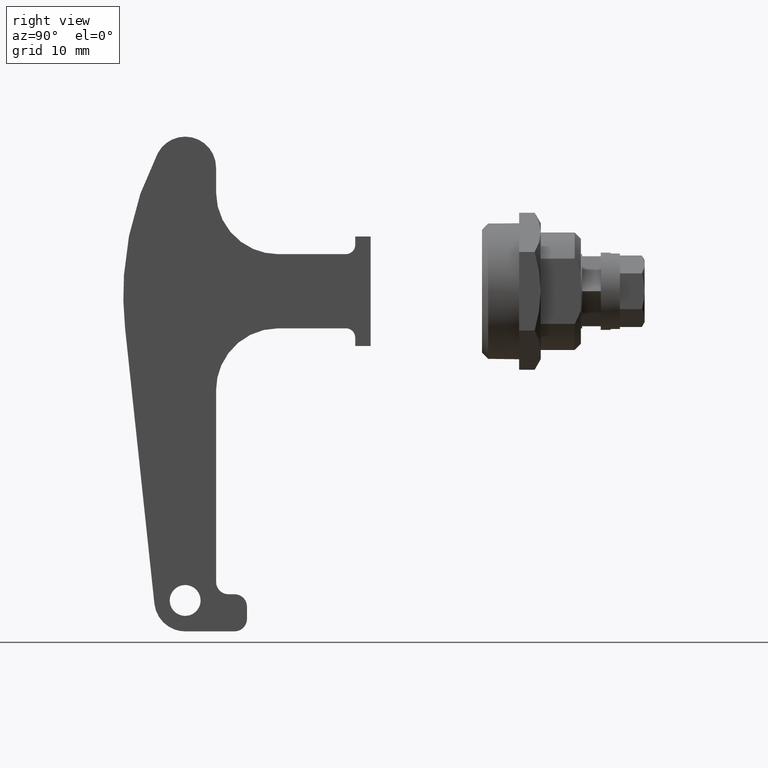
[diagram: clean part render]
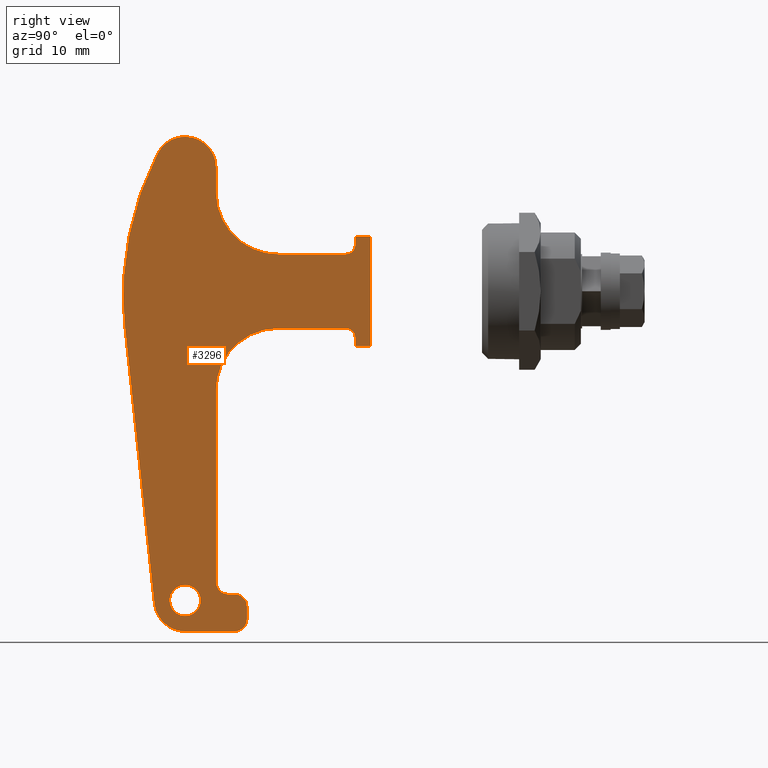
[diagram: same view with one face highlighted and labeled with its STEP entity id]
A machine part, right view. The second image highlights one B-rep face of the part: STEP entity #3296.
In plain terms, the highlighted face is a freeform B-spline surface patch.
Its self-contained STEP definition (entity closure, byte-faithful):
#2688=CARTESIAN_POINT('',(1.0,-172.408525002422010,-51.656350410493559));
#2689=VERTEX_POINT('',#2688);
#2695=CARTESIAN_POINT('',(1.0,-170.536136000000000,-52.499800000000000));
#2696=VERTEX_POINT('',#2695);
#2697=CARTESIAN_POINT('',(1.0,-172.408525002422010,-51.656350410493559));
#2698=CARTESIAN_POINT('',(1.000000000000000,-172.218765269600710,-51.871134569583113));
#2699=CARTESIAN_POINT('',(1.000000000000001,-171.851680893695200,-52.164244314597063));
#2700=CARTESIAN_POINT('',(1.0,-171.197403162582190,-52.438358340693263));
#2701=CARTESIAN_POINT('',(0.999999999999999,-170.778634413464800,-52.499902946295222));
#2702=CARTESIAN_POINT('',(1.0,-170.536136000000000,-52.499800000000000));
#2703=B_SPLINE_CURVE_WITH_KNOTS('',3,(#2697,#2698,#2699,#2700,#2701,#2702),.UNSPECIFIED.,.F.,.U.,(4,1,1,4),(0.000000159299194,0.859743418528021,1.388786231254722,2.116272971872887),.UNSPECIFIED.);
#2704=EDGE_CURVE('',#2689,#2696,#2703,.T.);
#2706=CARTESIAN_POINT('',(1.0,-168.036136000000000,-49.999800129850001));
#2707=VERTEX_POINT('',#2706);
#2708=CARTESIAN_POINT('',(1.0,-170.536136000000000,-52.499800000000000));
#2709=CARTESIAN_POINT('',(1.000000000000002,-170.188356166709410,-52.500260487814721));
#2710=CARTESIAN_POINT('',(0.999999999999997,-169.595604012052010,-52.373945107237837));
#2711=CARTESIAN_POINT('',(0.999999999999998,-168.844410458549190,-51.898314483583050));
#2712=CARTESIAN_POINT('',(1.000000000000009,-168.396737789170000,-51.352813859373377));
#2713=CARTESIAN_POINT('',(0.999999999999991,-168.105347834750400,-50.695110744591879));
#2714=CARTESIAN_POINT('',(1.000000000000005,-168.035994032083690,-50.265705896427242));
#2715=CARTESIAN_POINT('',(1.0,-168.036136000000000,-49.999800129850001));
#2716=B_SPLINE_CURVE_WITH_KNOTS('',3,(#2708,#2709,#2710,#2711,#2712,#2713,#2714,#2715),.UNSPECIFIED.,.F.,.U.,(4,1,1,1,1,4),(0.000000543888734,1.043138602829692,1.779488417533532,2.638502232633047,3.129407698402412,3.927089287728215),.UNSPECIFIED.);
#2717=EDGE_CURVE('',#2696,#2707,#2716,.T.);
#2719=CARTESIAN_POINT('',(1.0,-170.536136000000000,-47.499799999999993));
#2720=VERTEX_POINT('',#2719);
#2721=CARTESIAN_POINT('',(1.0,-168.036136000000000,-49.999800129850001));
#2722=CARTESIAN_POINT('',(1.0,-168.035992696794890,-49.733893875186787));
#2723=CARTESIAN_POINT('',(1.000000000000001,-168.105333804147590,-49.304477470429049));
#2724=CARTESIAN_POINT('',(0.999999999999999,-168.380156711428900,-48.684452767351281));
#2725=CARTESIAN_POINT('',(1.000000000000001,-168.787135531025090,-48.162824488278808));
#2726=CARTESIAN_POINT('',(0.999999999999997,-169.514010359687800,-47.650750198929913));
#2727=CARTESIAN_POINT('',(1.000000000000004,-170.147384490604590,-47.499121212078357));
#2728=CARTESIAN_POINT('',(1.0,-170.536136000000000,-47.499799999999993));
#2729=B_SPLINE_CURVE_WITH_KNOTS('',3,(#2721,#2722,#2723,#2724,#2725,#2726,#2727,#2728),.UNSPECIFIED.,.F.,.U.,(4,1,1,1,1,4),(0.000000543719573,0.797682162745053,1.288587646904784,2.024825535698195,2.761226608019133,3.927089434103053),.UNSPECIFIED.);
#2730=EDGE_CURVE('',#2707,#2720,#2729,.T.);
#2732=CARTESIAN_POINT('',(1.0,-172.192686452774300,-48.127410948943577));
#2733=VERTEX_POINT('',#2732);
#2734=CARTESIAN_POINT('',(1.0,-170.536136000000000,-47.499799999999993));
#2735=CARTESIAN_POINT('',(1.000000000000002,-170.819100439673800,-47.499616721850927));
#2736=CARTESIAN_POINT('',(0.999999999999998,-171.422569465762900,-47.603383305387887));
#2737=CARTESIAN_POINT('',(1.000000000000001,-171.952698267033610,-47.914696512699607));
#2738=CARTESIAN_POINT('',(1.0,-172.192686452774300,-48.127410948943577));
#2739=B_SPLINE_CURVE_WITH_KNOTS('',3,(#2734,#2735,#2736,#2737,#2738),.UNSPECIFIED.,.F.,.U.,(4,1,4),(0.000000093415586,0.848851872186542,1.810818172899197),.UNSPECIFIED.);
#2740=EDGE_CURVE('',#2720,#2733,#2739,.T.);
#2776=CARTESIAN_POINT('',(1.0,-173.036136000000000,-49.999799870149992));
#2777=VERTEX_POINT('',#2776);
#2778=CARTESIAN_POINT('',(1.0,-172.192686452774300,-48.127410948943577));
#2779=CARTESIAN_POINT('',(1.0,-172.407484753023910,-48.317156830366308));
#2780=CARTESIAN_POINT('',(1.000000000000000,-172.700569675996490,-48.684265248449712));
#2781=CARTESIAN_POINT('',(1.000000000000000,-172.974692939324310,-49.338533031354622));
#2782=CARTESIAN_POINT('',(1.000000000000001,-173.036241067928190,-49.757300905441419));
#2783=CARTESIAN_POINT('',(1.0,-173.036136000000000,-49.999799870149992));
#2784=B_SPLINE_CURVE_WITH_KNOTS('',3,(#2778,#2779,#2780,#2781,#2782,#2783),.UNSPECIFIED.,.F.,.U.,(4,1,1,4),(0.000000159299846,0.859743377085096,1.388786164312306,2.116272869846344),.UNSPECIFIED.);
#2785=EDGE_CURVE('',#2733,#2777,#2784,.T.);
#2787=CARTESIAN_POINT('',(1.0,-173.036136000000000,-49.999799870149992));
#2788=CARTESIAN_POINT('',(1.0,-173.036245283288790,-50.263884140409317));
#2789=CARTESIAN_POINT('',(1.0,-172.939644410808310,-50.867419234284249));
#2790=CARTESIAN_POINT('',(1.000000000000000,-172.633833628480090,-51.402281326452588));
#2791=CARTESIAN_POINT('',(1.0,-172.408525002422010,-51.656350410493559));
#2792=B_SPLINE_CURVE_WITH_KNOTS('',3,(#2787,#2788,#2789,#2790,#2791),.UNSPECIFIED.,.F.,.U.,(4,1,4),(0.000000093411884,0.792253248510607,1.810818279979138),.UNSPECIFIED.);
#2793=EDGE_CURVE('',#2777,#2689,#2792,.T.);
#3052=CARTESIAN_POINT('',(1.0,-182.531969976906310,28.994175920847951));
#3053=CARTESIAN_POINT('',(1.0,-138.538235049813610,28.994175920847951));
#3054=CARTESIAN_POINT('',(1.0,-182.531969976906310,-58.995705705116187));
#3055=CARTESIAN_POINT('',(1.0,-138.538235049813610,-58.995705705116187));
#3056=B_SPLINE_SURFACE_WITH_KNOTS('',1,1,((#3052,#3054),(#3053,#3055)),.UNSPECIFIED.,.F.,.F.,.U.,(2,2),(2,2),(0.0,43.993734927092653),(0.0,87.989881625964145),.UNSPECIFIED.);
#3057=CARTESIAN_POINT('',(1.0,-143.036136000000000,7.500000000000000));
#3058=VERTEX_POINT('',#3057);
#3059=CARTESIAN_POINT('',(1.0,-143.036136000000000,8.850000000000000));
#3060=VERTEX_POINT('',#3059);
#3061=CARTESIAN_POINT('',(1.0,-143.036136000000000,7.500000000000000));
#3062=CARTESIAN_POINT('',(1.0,-143.036136000000000,8.850000000000000));
#3063=QUASI_UNIFORM_CURVE('',1,(#3061,#3062),.UNSPECIFIED.,.F.,.U.);
#3064=EDGE_CURVE('',#3058,#3060,#3063,.T.);
#3065=ORIENTED_EDGE('',*,*,#3064,.F.);
#3066=CARTESIAN_POINT('',(1.0,-144.536136000000000,6.0));
#3067=VERTEX_POINT('',#3066);
#3068=CARTESIAN_POINT('',(1.0,-144.536136000000000,6.0));
#3069=CARTESIAN_POINT('',(1.000000000000000,-144.364328450384110,5.999902386504352));
#3070=CARTESIAN_POINT('',(1.0,-143.996199413855290,6.063884458602612));
#3071=CARTESIAN_POINT('',(1.000000000000002,-143.502501754630090,6.359509338114351));
#3072=CARTESIAN_POINT('',(0.999999999999996,-143.129994263701600,6.862151444936044));
#3073=CARTESIAN_POINT('',(1.000000000000003,-143.035823639093000,7.279038803580241));
#3074=CARTESIAN_POINT('',(1.0,-143.036136000000000,7.500000000000000));
#3075=B_SPLINE_CURVE_WITH_KNOTS('',3,(#3068,#3069,#3070,#3071,#3072,#3073,#3074),.UNSPECIFIED.,.F.,.U.,(4,1,1,1,4),(0.000000348524005,0.515468944969951,1.104583506280744,1.693684183177093,2.356430824938667),.UNSPECIFIED.);
#3076=EDGE_CURVE('',#3067,#3058,#3075,.T.);
#3077=ORIENTED_EDGE('',*,*,#3076,.F.);
#3078=CARTESIAN_POINT('',(1.0,-155.536136000000000,6.0));
#3079=VERTEX_POINT('',#3078);
#3080=CARTESIAN_POINT('',(1.0,-155.536136000000000,6.0));
#3081=CARTESIAN_POINT('',(1.0,-144.536136000000000,6.0));
#3082=QUASI_UNIFORM_CURVE('',1,(#3080,#3081),.UNSPECIFIED.,.F.,.U.);
#3083=EDGE_CURVE('',#3079,#3067,#3082,.T.);
#3084=ORIENTED_EDGE('',*,*,#3083,.F.);
#3085=CARTESIAN_POINT('',(1.0,-165.536136000000000,16.0));
#3086=VERTEX_POINT('',#3085);
#3087=CARTESIAN_POINT('',(1.0,-165.536136000000000,16.0));
#3088=CARTESIAN_POINT('',(0.999999999999998,-165.536270206773710,15.222783024775010));
#3089=CARTESIAN_POINT('',(1.000000000000002,-165.344535277846090,13.586556363174550));
#3090=CARTESIAN_POINT('',(1.0,-164.482754602917000,11.310709298614350));
#3091=CARTESIAN_POINT('',(1.000000000000001,-163.119200065381790,9.349326876895788));
#3092=CARTESIAN_POINT('',(1.000000000000000,-161.685892623961910,8.050416106532385));
#3093=CARTESIAN_POINT('',(1.000000000000006,-160.196986578333110,7.107668725069982));
#3094=CARTESIAN_POINT('',(0.999999999999994,-158.276544224122200,6.270142162420049));
#3095=CARTESIAN_POINT('',(1.0,-156.599769320177500,5.999434560674318));
#3096=CARTESIAN_POINT('',(1.0,-155.536136000000000,6.0));
#3097=B_SPLINE_CURVE_WITH_KNOTS('',3,(#3087,#3088,#3089,#3090,#3091,#3092,#3093,#3094,#3095,#3096),.UNSPECIFIED.,.F.,.U.,(4,1,1,1,1,1,1,4),(0.000000270709116,2.331654123721627,4.908776769898752,7.240483282938246,9.449341766031962,10.676546318009720,12.517376724644430,15.708061828768770),.UNSPECIFIED.);
#3098=EDGE_CURVE('',#3086,#3079,#3097,.T.);
#3099=ORIENTED_EDGE('',*,*,#3098,.F.);
#3100=CARTESIAN_POINT('',(1.0,-165.536136000000000,20.0));
#3101=VERTEX_POINT('',#3100);
#3102=CARTESIAN_POINT('',(1.0,-165.536136000000000,20.0));
#3103=CARTESIAN_POINT('',(1.0,-165.536136000000000,16.0));
#3104=QUASI_UNIFORM_CURVE('',1,(#3102,#3103),.UNSPECIFIED.,.F.,.U.);
#3105=EDGE_CURVE('',#3101,#3086,#3104,.T.);
#3106=ORIENTED_EDGE('',*,*,#3105,.F.);
#3107=CARTESIAN_POINT('',(1.0,-174.980589359556490,22.290851301147448));
#3108=VERTEX_POINT('',#3107);
#3109=CARTESIAN_POINT('',(1.0,-165.536136000000000,20.0));
#3110=CARTESIAN_POINT('',(1.000000000000000,-165.535651330309610,20.590148397457270));
#3111=CARTESIAN_POINT('',(1.0,-165.703977443484490,21.526960888046489));
#3112=CARTESIAN_POINT('',(1.000000000000001,-166.275205194960510,22.685051597023840));
#3113=CARTESIAN_POINT('',(1.000000000000002,-167.030100612542410,23.645451138516009));
#3114=CARTESIAN_POINT('',(0.999999999999996,-168.041604944862400,24.404866339557891));
#3115=CARTESIAN_POINT('',(1.000000000000006,-169.310428777709210,24.901753025372528));
#3116=CARTESIAN_POINT('',(0.999999999999999,-170.422759360053900,25.039765414371960));
#3117=CARTESIAN_POINT('',(1.0,-171.601688043104500,24.927084001691231));
#3118=CARTESIAN_POINT('',(1.0,-172.567895689886910,24.613446190662991));
#3119=CARTESIAN_POINT('',(1.0,-173.498115673314800,24.065013004533551));
#3120=CARTESIAN_POINT('',(1.000000000000000,-174.311452175277990,23.351637564042569));
#3121=CARTESIAN_POINT('',(1.0,-174.774012401304300,22.692009829662119));
#3122=CARTESIAN_POINT('',(1.0,-174.980589359556490,22.290851301147448));
#3123=B_SPLINE_CURVE_WITH_KNOTS('',3,(#3109,#3110,#3111,#3112,#3113,#3114,#3115,#3116,#3117,#3118,#3119,#3120,#3121,#3122),.UNSPECIFIED.,.F.,.U.,(4,1,1,1,1,1,1,1,1,1,1,4),(0.000000654076901,1.770239848158150,2.811577260832493,3.852943371635385,5.415021830009432,6.560474267477026,7.914034090324725,8.747138884296152,10.100936611302920,10.934040756647960,11.975407582284880,13.329057838478249),.UNSPECIFIED.);
#3124=EDGE_CURVE('',#3101,#3108,#3123,.T.);
#3125=ORIENTED_EDGE('',*,*,#3124,.T.);
#3126=CARTESIAN_POINT('',(1.0,-180.255535899108510,-5.905000948322530));
#3127=VERTEX_POINT('',#3126);
#3128=CARTESIAN_POINT('',(1.0,-174.980589359556490,22.290851301147448));
#3129=CARTESIAN_POINT('',(1.0,-176.369247159211000,19.597096437408570));
#3130=CARTESIAN_POINT('',(1.000000000000003,-178.140090907402510,15.225299982227590));
#3131=CARTESIAN_POINT('',(0.999999999999996,-179.642960447466410,9.189073221727275));
#3132=CARTESIAN_POINT('',(1.000000000000001,-180.631174540060700,2.588412057820146));
#3133=CARTESIAN_POINT('',(0.999999999999998,-180.624822931351700,-2.439372199072217));
#3134=CARTESIAN_POINT('',(1.0,-180.255535899108510,-5.905000948322530));
#3135=B_SPLINE_CURVE_WITH_KNOTS('',3,(#3128,#3129,#3130,#3131,#3132,#3133,#3134),.UNSPECIFIED.,.F.,.U.,(4,1,1,1,4),(0.000000015266519,9.091807153595042,14.092292656003700,18.638175211276160,29.093756540547840),.UNSPECIFIED.);
#3136=EDGE_CURVE('',#3108,#3127,#3135,.T.);
#3137=ORIENTED_EDGE('',*,*,#3136,.T.);
#3138=CARTESIAN_POINT('',(1.0,-175.508040051504510,-50.528761918160299));
#3139=VERTEX_POINT('',#3138);
#3140=CARTESIAN_POINT('',(1.0,-175.508040051504510,-50.528761918160299));
#3141=CARTESIAN_POINT('',(1.0,-180.255535899108510,-5.905000948322530));
#3142=QUASI_UNIFORM_CURVE('',1,(#3140,#3141),.UNSPECIFIED.,.F.,.U.);
#3143=EDGE_CURVE('',#3139,#3127,#3142,.T.);
#3144=ORIENTED_EDGE('',*,*,#3143,.F.);
#3145=CARTESIAN_POINT('',(1.0,-170.536098852220500,-54.999800000000000));
#3146=VERTEX_POINT('',#3145);
#3147=CARTESIAN_POINT('',(1.0,-175.508040051504510,-50.528761918160299));
#3148=CARTESIAN_POINT('',(1.000000000000002,-175.467767249162310,-50.908084614285997));
#3149=CARTESIAN_POINT('',(0.999999999999997,-175.291357056239800,-51.694889112015240));
#3150=CARTESIAN_POINT('',(1.000000000000002,-174.727369014573900,-52.831456638390932));
#3151=CARTESIAN_POINT('',(1.000000000000000,-173.936665273361510,-53.725757987185681));
#3152=CARTESIAN_POINT('',(0.999999999999999,-173.062365303995310,-54.347054025173563));
#3153=CARTESIAN_POINT('',(1.0,-171.985415643489010,-54.847463412505213));
#3154=CARTESIAN_POINT('',(1.000000000000003,-171.108359805882910,-55.000235142685163));
#3155=CARTESIAN_POINT('',(1.0,-170.536098852220500,-54.999800000000000));
#3156=B_SPLINE_CURVE_WITH_KNOTS('',3,(#3147,#3148,#3149,#3150,#3151,#3152,#3153,#3154,#3155),.UNSPECIFIED.,.F.,.U.,(4,1,1,1,1,1,4),(0.000000250459265,1.144376551728799,2.403274791967948,3.776496911442255,4.692022891164207,5.607586888820030,7.324187848232405),.UNSPECIFIED.);
#3157=EDGE_CURVE('',#3139,#3146,#3156,.T.);
#3158=ORIENTED_EDGE('',*,*,#3157,.T.);
#3159=CARTESIAN_POINT('',(1.0,-162.536136000000000,-54.999800000000000));
#3160=VERTEX_POINT('',#3159);
#3161=CARTESIAN_POINT('',(1.0,-162.536136000000000,-54.999800000000000));
#3162=CARTESIAN_POINT('',(1.0,-170.536098852220500,-54.999800000000000));
#3163=QUASI_UNIFORM_CURVE('',1,(#3161,#3162),.UNSPECIFIED.,.F.,.U.);
#3164=EDGE_CURVE('',#3160,#3146,#3163,.T.);
#3165=ORIENTED_EDGE('',*,*,#3164,.F.);
#3166=CARTESIAN_POINT('',(1.0,-160.536136000000000,-52.999800000000000));
#3167=VERTEX_POINT('',#3166);
#3168=CARTESIAN_POINT('',(1.0,-162.536136000000000,-54.999800000000000));
#3169=CARTESIAN_POINT('',(1.000000000000001,-162.323415775439910,-54.999917801515963));
#3170=CARTESIAN_POINT('',(0.999999999999999,-161.914416937771700,-54.933930859061093));
#3171=CARTESIAN_POINT('',(1.000000000000001,-161.426893922982200,-54.688536838248659));
#3172=CARTESIAN_POINT('',(0.999999999999999,-161.053482805580190,-54.366306310719530));
#3173=CARTESIAN_POINT('',(1.000000000000001,-160.670034435391100,-53.850025567971407));
#3174=CARTESIAN_POINT('',(0.999999999999999,-160.535402394528010,-53.343597956939888));
#3175=CARTESIAN_POINT('',(1.0,-160.536136000000000,-52.999800000000000));
#3176=B_SPLINE_CURVE_WITH_KNOTS('',3,(#3168,#3169,#3170,#3171,#3172,#3173,#3174,#3175),.UNSPECIFIED.,.F.,.U.,(4,1,1,1,1,4),(0.000000559976899,0.638137288425729,1.227220290634346,1.619840993311987,2.110791174281912,3.141671488777115),.UNSPECIFIED.);
#3177=EDGE_CURVE('',#3160,#3167,#3176,.T.);
#3178=ORIENTED_EDGE('',*,*,#3177,.T.);
#3179=CARTESIAN_POINT('',(1.0,-160.536136000000000,-50.999800000000000));
#3180=VERTEX_POINT('',#3179);
#3181=CARTESIAN_POINT('',(1.0,-160.536136000000000,-50.999800000000000));
#3182=CARTESIAN_POINT('',(1.0,-160.536136000000000,-52.999800000000000));
#3183=QUASI_UNIFORM_CURVE('',1,(#3181,#3182),.UNSPECIFIED.,.F.,.U.);
#3184=EDGE_CURVE('',#3180,#3167,#3183,.T.);
#3185=ORIENTED_EDGE('',*,*,#3184,.F.);
#3186=CARTESIAN_POINT('',(1.0,-162.536136000000000,-48.999800000000000));
#3187=VERTEX_POINT('',#3186);
#3188=CARTESIAN_POINT('',(1.0,-160.536136000000000,-50.999800000000000));
#3189=CARTESIAN_POINT('',(1.0,-160.535678310414710,-50.705173330319582));
#3190=CARTESIAN_POINT('',(1.0,-160.628168084521690,-50.296538752554198));
#3191=CARTESIAN_POINT('',(1.000000000000000,-160.967199382153210,-49.714640436023053));
#3192=CARTESIAN_POINT('',(1.0,-161.365780098564810,-49.335204750194357));
#3193=CARTESIAN_POINT('',(1.000000000000000,-161.947165031298200,-49.060422469528611));
#3194=CARTESIAN_POINT('',(1.0,-162.323420360968810,-48.999701494054918));
#3195=CARTESIAN_POINT('',(1.0,-162.536136000000000,-48.999800000000000));
#3196=B_SPLINE_CURVE_WITH_KNOTS('',3,(#3188,#3189,#3190,#3191,#3192,#3193,#3194,#3195),.UNSPECIFIED.,.F.,.U.,(4,1,1,1,1,4),(0.000000559991365,0.883601524163745,1.227220290639869,2.012618570527279,2.503534760331541,3.141671488777254),.UNSPECIFIED.);
#3197=EDGE_CURVE('',#3180,#3187,#3196,.T.);
#3198=ORIENTED_EDGE('',*,*,#3197,.T.);
#3199=CARTESIAN_POINT('',(1.0,-163.536136000000000,-48.999800000000000));
#3200=VERTEX_POINT('',#3199);
#3201=CARTESIAN_POINT('',(1.0,-163.536136000000000,-48.999800000000000));
#3202=CARTESIAN_POINT('',(1.0,-162.536136000000000,-48.999800000000000));
#3203=QUASI_UNIFORM_CURVE('',1,(#3201,#3202),.UNSPECIFIED.,.F.,.U.);
#3204=EDGE_CURVE('',#3200,#3187,#3203,.T.);
#3205=ORIENTED_EDGE('',*,*,#3204,.F.);
#3206=CARTESIAN_POINT('',(1.0,-165.536136000000000,-46.999800000000000));
#3207=VERTEX_POINT('',#3206);
#3208=CARTESIAN_POINT('',(1.0,-165.536136000000000,-46.999800000000000));
#3209=CARTESIAN_POINT('',(1.000000000000000,-165.536254442622290,-47.212521208911589));
#3210=CARTESIAN_POINT('',(0.999999999999999,-165.470263930511090,-47.621513364319448));
#3211=CARTESIAN_POINT('',(1.000000000000003,-165.202568248399810,-48.153386587107903));
#3212=CARTESIAN_POINT('',(1.0,-164.809234915275110,-48.576839164540097));
#3213=CARTESIAN_POINT('',(1.000000000000000,-164.255912327299710,-48.908480606216642));
#3214=CARTESIAN_POINT('',(1.0,-163.797982037756410,-49.000093947631797));
#3215=CARTESIAN_POINT('',(1.0,-163.536136000000000,-48.999800000000000));
#3216=B_SPLINE_CURVE_WITH_KNOTS('',3,(#3208,#3209,#3210,#3211,#3212,#3213,#3214,#3215),.UNSPECIFIED.,.F.,.U.,(4,1,1,1,1,4),(0.000000559996974,0.638137288440006,1.227220290643141,1.767134176386044,2.356253756581050,3.141671488777228),.UNSPECIFIED.);
#3217=EDGE_CURVE('',#3207,#3200,#3216,.T.);
#3218=ORIENTED_EDGE('',*,*,#3217,.F.);
#3219=CARTESIAN_POINT('',(1.0,-165.536136000000000,-16.0));
#3220=VERTEX_POINT('',#3219);
#3221=CARTESIAN_POINT('',(1.0,-165.536136000000000,-16.0));
#3222=CARTESIAN_POINT('',(1.0,-165.536136000000000,-46.999800000000000));
#3223=QUASI_UNIFORM_CURVE('',1,(#3221,#3222),.UNSPECIFIED.,.F.,.U.);
#3224=EDGE_CURVE('',#3220,#3207,#3223,.T.);
#3225=ORIENTED_EDGE('',*,*,#3224,.F.);
#3226=CARTESIAN_POINT('',(1.0,-155.536136000000000,-6.0));
#3227=VERTEX_POINT('',#3226);
#3228=CARTESIAN_POINT('',(1.0,-155.536136000000000,-6.0));
#3229=CARTESIAN_POINT('',(0.999999999999999,-156.313352613838500,-5.999877524168937));
#3230=CARTESIAN_POINT('',(0.999999999999999,-157.949580587987610,-6.191577421280197));
#3231=CARTESIAN_POINT('',(1.000000000000007,-160.225415989497410,-7.053419415564927));
#3232=CARTESIAN_POINT('',(0.999999999999993,-162.288323329022690,-8.487367863672265));
#3233=CARTESIAN_POINT('',(0.999999999999996,-163.889115376740900,-10.320354401015379));
#3234=CARTESIAN_POINT('',(1.000000000000013,-164.844872655742990,-12.190716686984400));
#3235=CARTESIAN_POINT('',(0.999999999999976,-165.404463952215390,-14.077488982024590));
#3236=CARTESIAN_POINT('',(1.000000000000053,-165.536286622605100,-15.263686519067839));
#3237=CARTESIAN_POINT('',(1.0,-165.536136000000000,-16.0));
#3238=B_SPLINE_CURVE_WITH_KNOTS('',3,(#3228,#3229,#3230,#3231,#3232,#3233,#3234,#3235,#3236,#3237),.UNSPECIFIED.,.F.,.U.,(4,1,1,1,1,1,1,4),(0.000000270659248,2.331654123681362,4.908776769868471,7.240483282914747,9.817521841804044,12.149208311741949,13.499153531187099,15.708061828769370),.UNSPECIFIED.);
#3239=EDGE_CURVE('',#3227,#3220,#3238,.T.);
#3240=ORIENTED_EDGE('',*,*,#3239,.F.);
#3241=CARTESIAN_POINT('',(1.0,-144.536136000000000,-6.0));
#3242=VERTEX_POINT('',#3241);
#3243=CARTESIAN_POINT('',(1.0,-144.536136000000000,-6.0));
#3244=CARTESIAN_POINT('',(1.0,-155.536136000000000,-6.0));
#3245=QUASI_UNIFORM_CURVE('',1,(#3243,#3244),.UNSPECIFIED.,.F.,.U.);
#3246=EDGE_CURVE('',#3242,#3227,#3245,.T.);
#3247=ORIENTED_EDGE('',*,*,#3246,.F.);
#3248=CARTESIAN_POINT('',(1.0,-143.036136000000000,-7.500000000000000));
#3249=VERTEX_POINT('',#3248);
#3250=CARTESIAN_POINT('',(1.0,-143.036136000000000,-7.500000000000000));
#3251=CARTESIAN_POINT('',(0.999999999999999,-143.035793775269410,-7.279035425719099));
#3252=CARTESIAN_POINT('',(1.000000000000002,-143.130030361828400,-6.862158556068359));
#3253=CARTESIAN_POINT('',(0.999999999999997,-143.502487818818390,-6.359506614172871));
#3254=CARTESIAN_POINT('',(1.000000000000004,-143.996203109713600,-6.063885360538771));
#3255=CARTESIAN_POINT('',(0.999999999999998,-144.364324854387090,-5.999902443624710));
#3256=CARTESIAN_POINT('',(1.0,-144.536136000000000,-6.0));
#3257=B_SPLINE_CURVE_WITH_KNOTS('',3,(#3250,#3251,#3252,#3253,#3254,#3255,#3256),.UNSPECIFIED.,.F.,.U.,(4,1,1,1,4),(0.000000348528810,0.662746990289565,1.251847667184678,1.840962228493762,2.356430824938675),.UNSPECIFIED.);
#3258=EDGE_CURVE('',#3249,#3242,#3257,.T.);
#3259=ORIENTED_EDGE('',*,*,#3258,.F.);
#3260=CARTESIAN_POINT('',(1.0,-143.036136000000000,-8.850000000000000));
#3261=VERTEX_POINT('',#3260);
#3262=CARTESIAN_POINT('',(1.0,-143.036136000000000,-8.850000000000000));
#3263=CARTESIAN_POINT('',(1.0,-143.036136000000000,-7.500000000000000));
#3264=QUASI_UNIFORM_CURVE('',1,(#3262,#3263),.UNSPECIFIED.,.F.,.U.);
#3265=EDGE_CURVE('',#3261,#3249,#3264,.T.);
#3266=ORIENTED_EDGE('',*,*,#3265,.F.);
#3267=CARTESIAN_POINT('',(1.0,-140.536136000000000,-8.850000000000000));
#3268=VERTEX_POINT('',#3267);
#3269=CARTESIAN_POINT('',(1.0,-140.536136000000000,-8.850000000000000));
#3270=CARTESIAN_POINT('',(1.0,-143.036136000000000,-8.850000000000000));
#3271=QUASI_UNIFORM_CURVE('',1,(#3269,#3270),.UNSPECIFIED.,.F.,.U.);
#3272=EDGE_CURVE('',#3268,#3261,#3271,.T.);
#3273=ORIENTED_EDGE('',*,*,#3272,.F.);
#3274=CARTESIAN_POINT('',(1.0,-140.536136000000000,8.850000000000000));
#3275=VERTEX_POINT('',#3274);
#3276=CARTESIAN_POINT('',(1.0,-140.536136000000000,8.850000000000000));
#3277=CARTESIAN_POINT('',(1.0,-140.536136000000000,-8.850000000000000));
#3278=QUASI_UNIFORM_CURVE('',1,(#3276,#3277),.UNSPECIFIED.,.F.,.U.);
#3279=EDGE_CURVE('',#3275,#3268,#3278,.T.);
#3280=ORIENTED_EDGE('',*,*,#3279,.F.);
#3281=CARTESIAN_POINT('',(1.0,-143.036136000000000,8.850000000000000));
#3282=CARTESIAN_POINT('',(1.0,-140.536136000000000,8.850000000000000));
#3283=QUASI_UNIFORM_CURVE('',1,(#3281,#3282),.UNSPECIFIED.,.F.,.U.);
#3284=EDGE_CURVE('',#3060,#3275,#3283,.T.);
#3285=ORIENTED_EDGE('',*,*,#3284,.F.);
#3286=EDGE_LOOP('',(#3065,#3077,#3084,#3099,#3106,#3125,#3137,#3144,#3158,#3165,#3178,#3185,#3198,#3205,#3218,#3225,#3240,#3247,#3259,#3266,#3273,#3280,#3285));
#3287=FACE_OUTER_BOUND('',#3286,.T.);
#3288=ORIENTED_EDGE('',*,*,#2717,.F.);
#3289=ORIENTED_EDGE('',*,*,#2704,.F.);
#3290=ORIENTED_EDGE('',*,*,#2793,.F.);
#3291=ORIENTED_EDGE('',*,*,#2785,.F.);
#3292=ORIENTED_EDGE('',*,*,#2740,.F.);
#3293=ORIENTED_EDGE('',*,*,#2730,.F.);
#3294=EDGE_LOOP('',(#3288,#3289,#3290,#3291,#3292,#3293));
#3295=FACE_BOUND('',#3294,.T.);
#3296=ADVANCED_FACE('',(#3287,#3295),#3056,.F.);